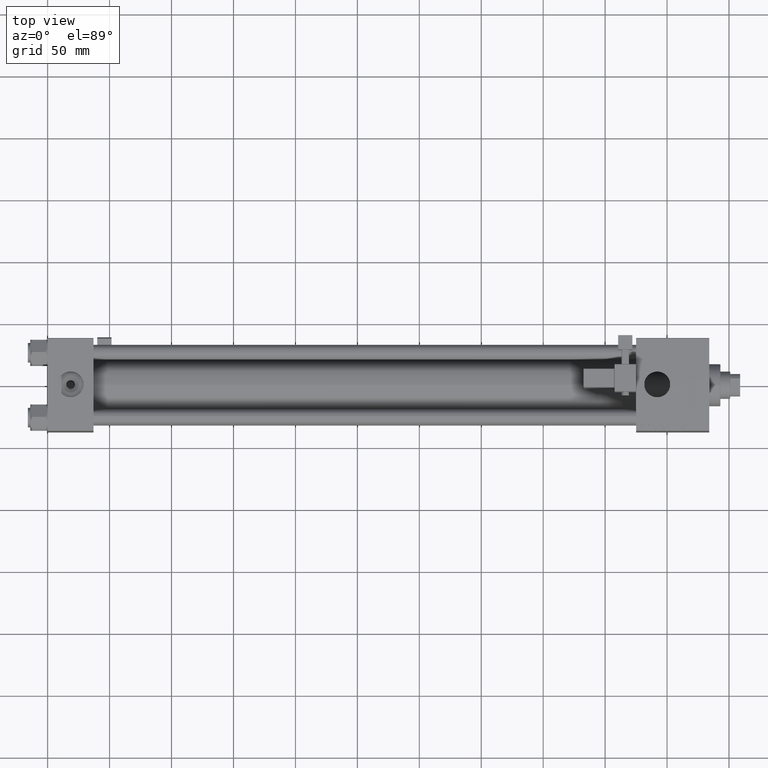
[diagram: clean part render]
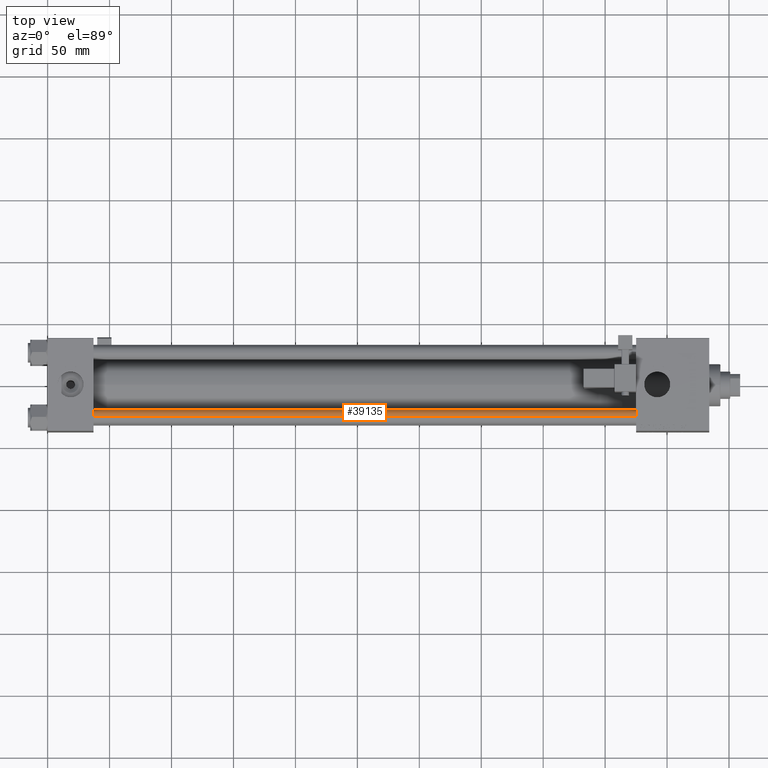
[diagram: same view with one face highlighted and labeled with its STEP entity id]
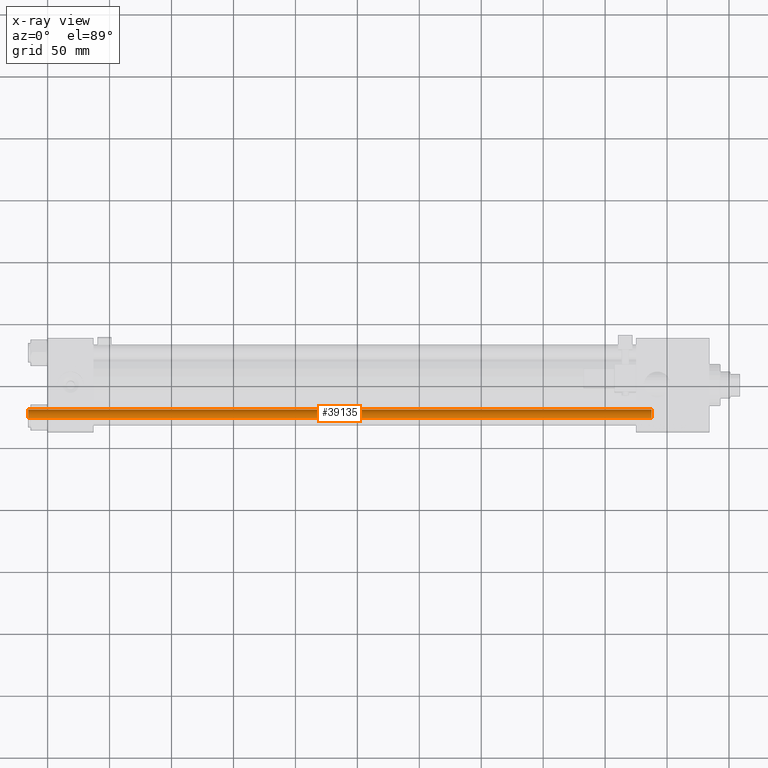
[diagram: x-ray of the same camera — body ghosted, the highlighted face saturated]
A machine part, top view. The second image highlights one B-rep face of the part: STEP entity #39135.
The next image is the same camera in x-ray: the body ghosted, the highlighted face saturated — about 0% of this face is hidden behind the body in this view.
In plain terms, the highlighted cylindrical surface (edge-blend (fillet) strip) has radius 6 mm, axis along (1, 0, -0).
Its self-contained STEP definition (entity closure, byte-faithful):
#2794 = EDGE_CURVE ( 'NONE', #38427, #31491, #29029, .T. ) ;
#3202 = CARTESIAN_POINT ( 'NONE',  ( 6.000000000000000888, 7.347880794884120722E-16, 503.5000000000000568 ) ) ;
#3312 = ORIENTED_EDGE ( 'NONE', *, *, #25682, .T. ) ;
#4175 = AXIS2_PLACEMENT_3D ( 'NONE', #4712, #26954, #18225 ) ;
#4251 = AXIS2_PLACEMENT_3D ( 'NONE', #17568, #38445, #42683 ) ;
#4647 = AXIS2_PLACEMENT_3D ( 'NONE', #32242, #24320, #54232 ) ;
#4712 = CARTESIAN_POINT ( 'NONE',  ( 0.000000000000000000, 0.000000000000000000, 503.5000000000000568 ) ) ;
#10183 = CARTESIAN_POINT ( 'NONE',  ( 6.000000000000000888, 7.347880794884120722E-16, 0.5000000000001669775 ) ) ;
#13226 = ORIENTED_EDGE ( 'NONE', *, *, #2794, .F. ) ;
#15554 = CIRCLE ( 'NONE', #4647, 6.000000000000000888 ) ;
#17568 = CARTESIAN_POINT ( 'NONE',  ( 0.000000000000000000, 0.000000000000000000, 504.0000000000000000 ) ) ;
#18225 = DIRECTION ( 'NONE',  ( 1.000000000000000000, 0.000000000000000000, 0.000000000000000000 ) ) ;
#18706 = CARTESIAN_POINT ( 'NONE',  ( -6.000000000000000888, 0.000000000000000000, 0.5000000000001669775 ) ) ;
#23873 = VECTOR ( 'NONE', #33412, 1000.000000000000000 ) ;
#24320 = DIRECTION ( 'NONE',  ( -0.000000000000000000, -0.000000000000000000, 1.000000000000000000 ) ) ;
#25682 = EDGE_CURVE ( 'NONE', #42292, #41462, #28889, .T. ) ;
#26954 = DIRECTION ( 'NONE',  ( 0.000000000000000000, 0.000000000000000000, -1.000000000000000000 ) ) ;
#28889 = LINE ( 'NONE', #33698, #23873 ) ;
#29029 = LINE ( 'NONE', #29584, #45244 ) ;
#29584 = CARTESIAN_POINT ( 'NONE',  ( 6.000000000000000888, 7.347880794884120722E-16, 504.0000000000000000 ) ) ;
#31491 = VERTEX_POINT ( 'NONE', #10183 ) ;
#32242 = CARTESIAN_POINT ( 'NONE',  ( 0.000000000000000000, 0.000000000000000000, 0.5000000000001669775 ) ) ;
#33412 = DIRECTION ( 'NONE',  ( -0.000000000000000000, -0.000000000000000000, -1.000000000000000000 ) ) ;
#33698 = CARTESIAN_POINT ( 'NONE',  ( -6.000000000000000888, 0.000000000000000000, 504.0000000000000000 ) ) ;
#37105 = EDGE_CURVE ( 'NONE', #38427, #42292, #47404, .T. ) ;
#38427 = VERTEX_POINT ( 'NONE', #3202 ) ;
#38445 = DIRECTION ( 'NONE',  ( -0.000000000000000000, -0.000000000000000000, -1.000000000000000000 ) ) ;
#38716 = FACE_OUTER_BOUND ( 'NONE', #47914, .T. ) ;
#39135 = ADVANCED_FACE ( 'NONE', ( #38716 ), #51412, .T. ) ;
#41462 = VERTEX_POINT ( 'NONE', #18706 ) ;
#42292 = VERTEX_POINT ( 'NONE', #52021 ) ;
#42575 = DIRECTION ( 'NONE',  ( -0.000000000000000000, -0.000000000000000000, -1.000000000000000000 ) ) ;
#42683 = DIRECTION ( 'NONE',  ( -1.000000000000000000, 0.000000000000000000, 0.000000000000000000 ) ) ;
#45244 = VECTOR ( 'NONE', #42575, 1000.000000000000000 ) ;
#46557 = ORIENTED_EDGE ( 'NONE', *, *, #54558, .T. ) ;
#47404 = CIRCLE ( 'NONE', #4175, 6.000000000000000888 ) ;
#47914 = EDGE_LOOP ( 'NONE', ( #13226, #55498, #3312, #46557 ) ) ;
#51412 = CYLINDRICAL_SURFACE ( 'NONE', #4251, 6.000000000000000888 ) ;
#52021 = CARTESIAN_POINT ( 'NONE',  ( -6.000000000000000888, 0.000000000000000000, 503.5000000000000568 ) ) ;
#54232 = DIRECTION ( 'NONE',  ( 1.000000000000000000, 0.000000000000000000, 0.000000000000000000 ) ) ;
#54558 = EDGE_CURVE ( 'NONE', #41462, #31491, #15554, .T. ) ;
#55498 = ORIENTED_EDGE ( 'NONE', *, *, #37105, .T. ) ;